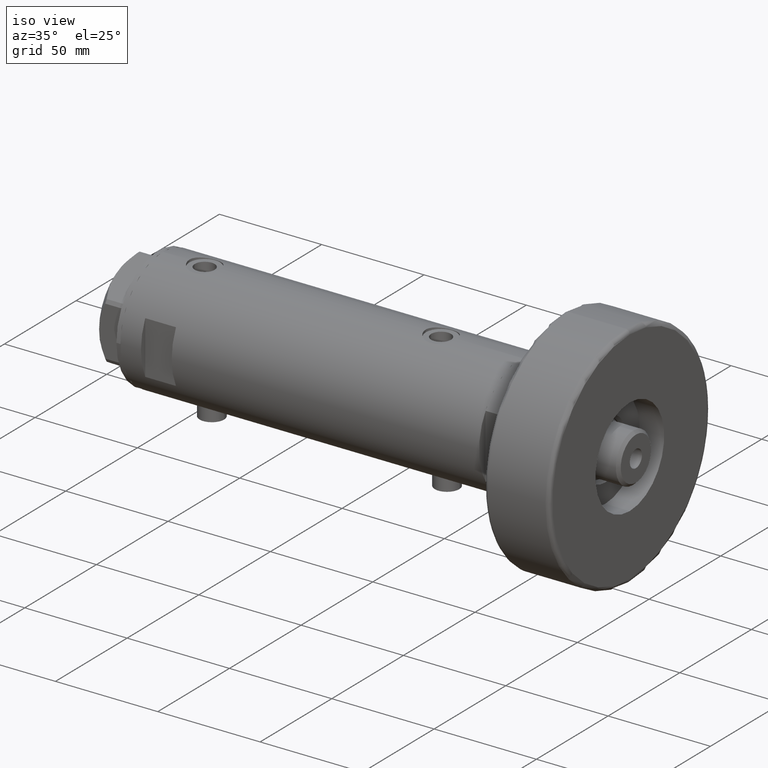
[diagram: clean part render]
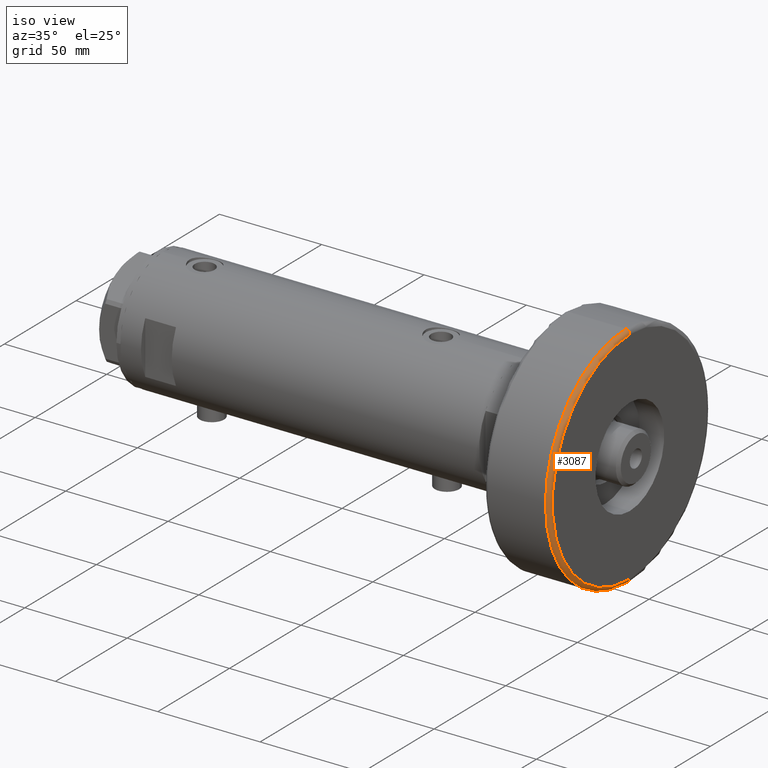
[diagram: same view with one face highlighted and labeled with its STEP entity id]
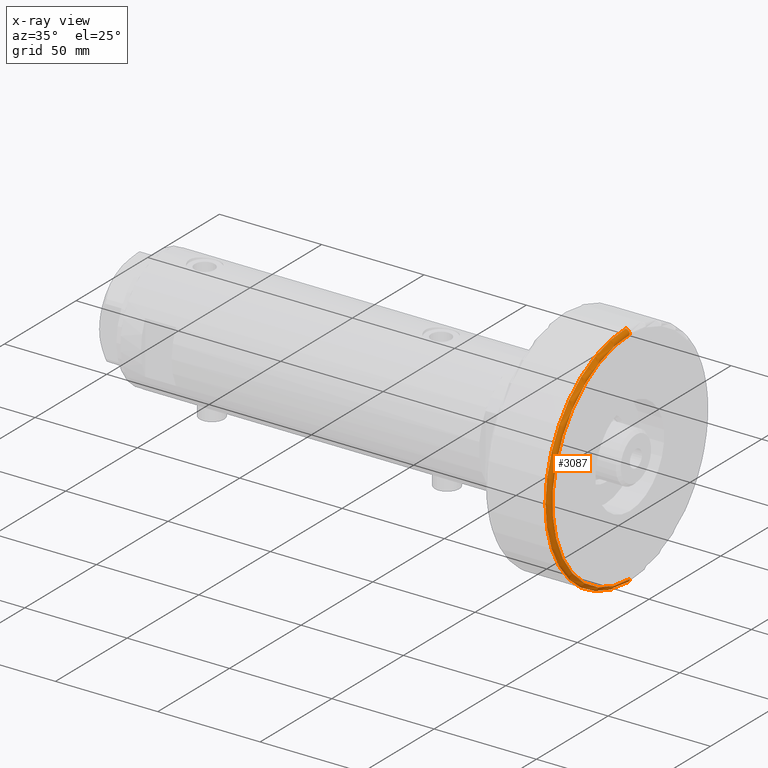
[diagram: x-ray of the same camera — body ghosted, the highlighted face saturated]
A machine part, iso view. The second image highlights one B-rep face of the part: STEP entity #3087.
The next image is the same camera in x-ray: the body ghosted, the highlighted face saturated — about 0% of this face is hidden behind the body in this view.
In plain terms, the highlighted toroidal blend (fillet) surface has major radius 54 mm and minor (blend) radius 2 mm.
Its self-contained STEP definition (entity closure, byte-faithful):
#701 = EDGE_CURVE ( 'NONE', #1570, #2963, #3942, .T. ) ;
#774 = DIRECTION ( 'NONE',  ( 0.000000000000000000, 0.000000000000000000, 1.000000000000000000 ) ) ;
#813 = EDGE_LOOP ( 'NONE', ( #1345, #2649, #1177, #929 ) ) ;
#929 = ORIENTED_EDGE ( 'NONE', *, *, #2793, .F. ) ;
#1177 = ORIENTED_EDGE ( 'NONE', *, *, #701, .T. ) ;
#1310 = CARTESIAN_POINT ( 'NONE',  ( -54.00000000000000000, 6.613092715395707467E-15, 30.00000000000000000 ) ) ;
#1345 = ORIENTED_EDGE ( 'NONE', *, *, #2246, .F. ) ;
#1430 = DIRECTION ( 'NONE',  ( 1.000000000000000000, 0.000000000000000000, 0.000000000000000000 ) ) ;
#1471 = EDGE_CURVE ( 'NONE', #1570, #2477, #3025, .T. ) ;
#1570 = VERTEX_POINT ( 'NONE', #3321 ) ;
#1709 = VERTEX_POINT ( 'NONE', #3697 ) ;
#1938 = DIRECTION ( 'NONE',  ( 0.000000000000000000, 0.000000000000000000, 1.000000000000000000 ) ) ;
#2160 = FACE_OUTER_BOUND ( 'NONE', #813, .T. ) ;
#2203 = DIRECTION ( 'NONE',  ( 0.000000000000000000, 0.000000000000000000, -1.000000000000000000 ) ) ;
#2246 = EDGE_CURVE ( 'NONE', #2477, #1709, #4114, .T. ) ;
#2300 = DIRECTION ( 'NONE',  ( 0.000000000000000000, -1.000000000000000000, 0.000000000000000000 ) ) ;
#2355 = TOROIDAL_SURFACE ( 'NONE', #3973, 54.00000000000000000, 2.000000000000000000 ) ;
#2428 = DIRECTION ( 'NONE',  ( -1.000000000000000000, 1.224646799147353454E-16, 0.000000000000000000 ) ) ;
#2458 = CARTESIAN_POINT ( 'NONE',  ( 54.00000000000000000, 0.000000000000000000, 32.00000000000000000 ) ) ;
#2477 = VERTEX_POINT ( 'NONE', #3230 ) ;
#2586 = DIRECTION ( 'NONE',  ( 1.000000000000000000, 0.000000000000000000, 0.000000000000000000 ) ) ;
#2649 = ORIENTED_EDGE ( 'NONE', *, *, #1471, .F. ) ;
#2789 = CARTESIAN_POINT ( 'NONE',  ( 0.000000000000000000, 0.000000000000000000, 30.00000000000000000 ) ) ;
#2793 = EDGE_CURVE ( 'NONE', #1709, #2963, #2920, .T. ) ;
#2843 = AXIS2_PLACEMENT_3D ( 'NONE', #4580, #1938, #4189 ) ;
#2920 = CIRCLE ( 'NONE', #2843, 54.00000000000000000 ) ;
#2963 = VERTEX_POINT ( 'NONE', #2458 ) ;
#3025 = CIRCLE ( 'NONE', #4428, 56.00000000000000000 ) ;
#3087 = ADVANCED_FACE ( 'NONE', ( #2160 ), #2355, .T. ) ;
#3230 = CARTESIAN_POINT ( 'NONE',  ( -56.00000000000000000, 0.000000000000000000, 30.00000000000000000 ) ) ;
#3245 = AXIS2_PLACEMENT_3D ( 'NONE', #4841, #2300, #2203 ) ;
#3321 = CARTESIAN_POINT ( 'NONE',  ( 56.00000000000000000, 6.858022075225178552E-15, 30.00000000000000000 ) ) ;
#3697 = CARTESIAN_POINT ( 'NONE',  ( -54.00000000000000000, 6.735557395310443404E-15, 32.00000000000000000 ) ) ;
#3801 = AXIS2_PLACEMENT_3D ( 'NONE', #1310, #4258, #2428 ) ;
#3942 = CIRCLE ( 'NONE', #3245, 2.000000000000001776 ) ;
#3973 = AXIS2_PLACEMENT_3D ( 'NONE', #4378, #774, #1430 ) ;
#4114 = CIRCLE ( 'NONE', #3801, 2.000000000000001776 ) ;
#4189 = DIRECTION ( 'NONE',  ( 1.000000000000000000, 0.000000000000000000, 0.000000000000000000 ) ) ;
#4258 = DIRECTION ( 'NONE',  ( 1.224646799147353207E-16, 1.000000000000000000, -0.000000000000000000 ) ) ;
#4301 = DIRECTION ( 'NONE',  ( -0.000000000000000000, -0.000000000000000000, -1.000000000000000000 ) ) ;
#4378 = CARTESIAN_POINT ( 'NONE',  ( 0.000000000000000000, 0.000000000000000000, 30.00000000000000000 ) ) ;
#4428 = AXIS2_PLACEMENT_3D ( 'NONE', #2789, #4301, #2586 ) ;
#4580 = CARTESIAN_POINT ( 'NONE',  ( 0.000000000000000000, 0.000000000000000000, 32.00000000000000000 ) ) ;
#4841 = CARTESIAN_POINT ( 'NONE',  ( 54.00000000000000000, 0.000000000000000000, 30.00000000000000000 ) ) ;